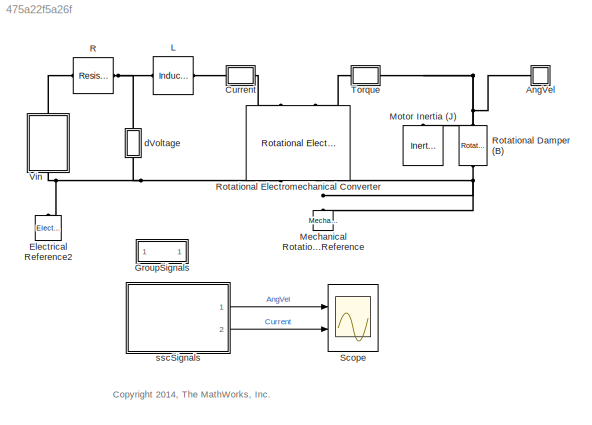
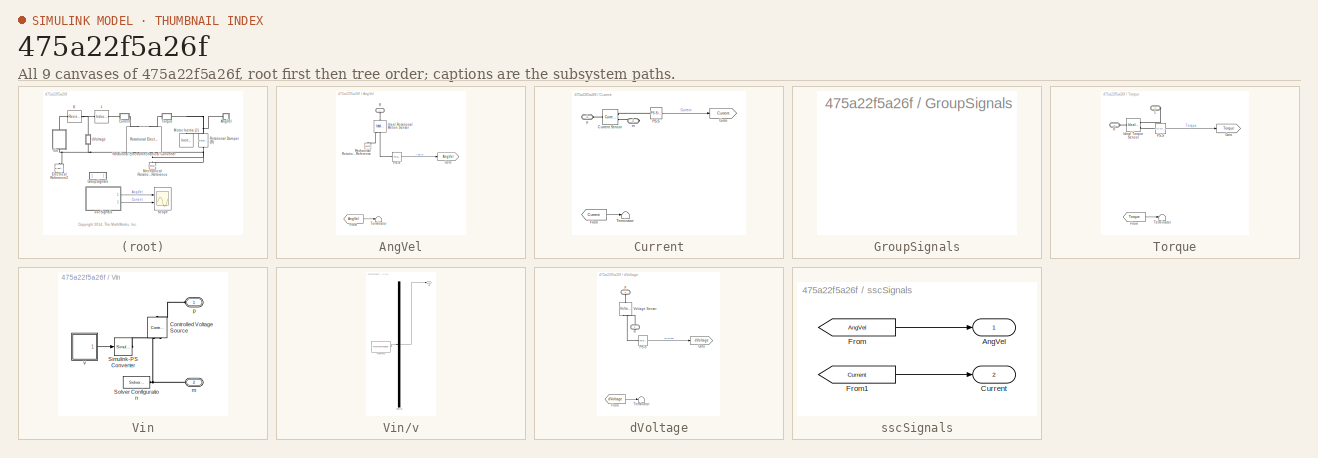
[diagram: thumbnail index - all 9 canvases of the model, root first then tree order]
MODEL slx_475a22f5a26f
KIND model
CONFIG AbsTol = auto
CONFIG EnableMultiTasking = on
CONFIG FixedStep = auto
CONFIG MaxStep = auto
CONFIG MinStep = auto
CONFIG RelTol = 1e-3
CONFIG SampleTimeConstraint = Unconstrained
CONFIG Solver = ode23t
CONFIG SolverName = ode23t
CONFIG StartTime = 0.0
CONFIG StopTime = 10.0
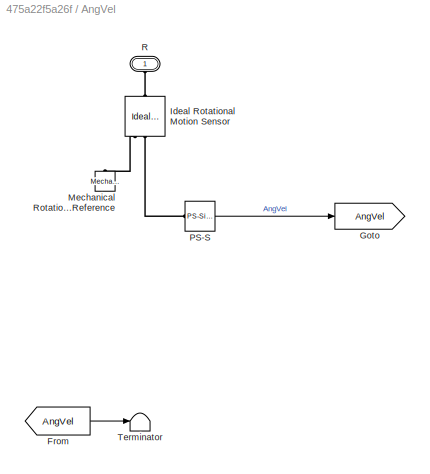
BLOCK [SubSystem] AngVel
  AttributesFormatString = [rpm]
  CopyFcn = set_param(gcb,'LinkStatus','inactive');                \nset_param(gcb,'LinkStatus','none');                    \nset_param([gcb '/Goto'],'GotoTag', [get(gcbh,'name')]);\nset_param([gcb '/From'],'GotoTag', [get(gcbh,'name')]);\nh = get_param([gcb, '/PS-S'], 'PortHandles');\nset(h.Outport(1), 'SignalNameFromLabel', [get(gcbh,'name')])\nclear h;  <repeated x4 — deduplicated; at blocks: AngVel, Current, Torque, dVoltage>
  Description = Simscape Probe
  InitFcn = unit=get_param([gcb '/PS-S'],'Unit');                                              \nset_param(gcb, 'AttributesFormatString', strcat('[', unit,']'));
  NameChangeFcn = set_param([gcb '/Goto'],'GotoTag', [get(gcbh,'name')]);\nset_param([gcb '/From'],'GotoTag', [get(gcbh,'name')]);\nh = get_param([gcb, '/PS-S'], 'PortHandles');\nset(h.Outport(1), 'SignalNameFromLabel', [get(gcbh,'name')])\nclear h;  <repeated x4 — deduplicated; at blocks: AngVel, Current, Torque, dVoltage>
  OpenFcn = if exist('logsout', 'var')\n  vname = get(gcbh,'name');                 \n  fHandle = findall(0,'Tag',vname);                         \n  if isempty(fHandle)                                        \n  figure('Tag',vname);                                       \n  end;                                                       \n  figure(findobj('Tag',vname));                             \n  plot(logsout.getEl...<+220ch>
  Ports = [0, 0, 0, 0, 0, 1]
  RequestExecContextInheritance = off
BLOCK [From] AngVel/From
  GotoTag = AngVel
  TagVisibility = global
BLOCK [Goto] AngVel/Goto
  GotoTag = AngVel
  TagVisibility = global
BLOCK [Reference] AngVel/Ideal Rotational Motion Sensor  REF=fl_lib/Mechanical/Mechanical Sensors/Ideal Rotational
Motion Sensor
  Ports = [0, 0, 0, 0, 0, 1, 3]
  SourceBlock = fl_lib/Mechanical/Mechanical Sensors/Ideal Rotational\nMotion Sensor
  SourceProductBaseCode = SS
  SourceProductName = Simscape
  SourceType = Ideal Rotational\nMotion Sensor
BLOCK [Reference] AngVel/Mechanical Rotational Reference  REF=fl_lib/Mechanical/Rotational Elements/Mechanical
Rotational Reference
  Ports = [0, 0, 0, 0, 0, 1]
  SourceBlock = fl_lib/Mechanical/Rotational Elements/Mechanical\nRotational Reference
  SourceProductBaseCode = SS
  SourceProductName = Simscape
  SourceType = Mechanical\nRotational Reference
BLOCK [Reference] AngVel/PS-S  REF=nesl_utility/PS-Simulink
Converter
  Ports = [0, 1, 0, 0, 0, 1]
  SourceBlock = nesl_utility/PS-Simulink\nConverter
  SourceProductBaseCode = SS
  SourceProductName = Simscape
  SourceType = PS-Simulink\nConverter
BLOCK [PMIOPort] AngVel/R
  Side = Left
BLOCK [Terminator] AngVel/Terminator
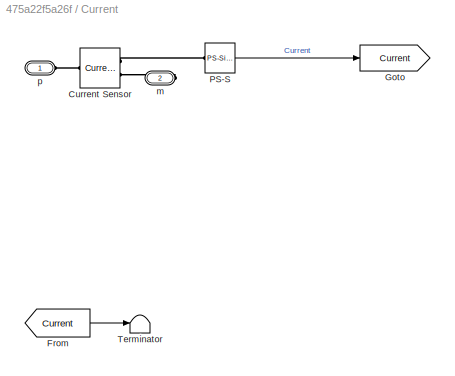
BLOCK [SubSystem] Current
  AttributesFormatString = [A]
  Description = Simscape Probe
  InitFcn = unit=get_param([gcb '/PS-S'],'Unit');                                              \nset_param(gcb, 'AttributesFormatString', strcat('[', unit,']'));
  OpenFcn = if exist('logsout', 'var')\n  vname = get(gcbh,'name');                 \n  fHandle = findall(0,'Tag',vname);                         \n  if isempty(fHandle)                                        \n  figure('Tag',vname);                                       \n  end;                                                       \n  figure(findobj('Tag',vname));                             \n  plot(logsout.getEl...<+211ch>
  Ports = [0, 0, 0, 0, 0, 1, 1]
  RequestExecContextInheritance = off
BLOCK [Reference] Current/Current Sensor  REF=fl_lib/Electrical/Electrical Sensors/Current Sensor
  Ports = [0, 0, 0, 0, 0, 1, 2]
  SourceBlock = fl_lib/Electrical/Electrical Sensors/Current Sensor
  SourceProductBaseCode = SS
  SourceProductName = Simscape
  SourceType = Current Sensor
BLOCK [From] Current/From
  GotoTag = Current
  TagVisibility = global
BLOCK [Goto] Current/Goto
  GotoTag = Current
  TagVisibility = global
BLOCK [Reference] Current/PS-S  REF=nesl_utility/PS-Simulink
Converter
  Ports = [0, 1, 0, 0, 0, 1]
  SourceBlock = nesl_utility/PS-Simulink\nConverter
  SourceProductBaseCode = SS
  SourceProductName = Simscape
  SourceType = PS-Simulink\nConverter
BLOCK [Terminator] Current/Terminator
BLOCK [PMIOPort] Current/m
  Port = 2
  Side = Right
BLOCK [PMIOPort] Current/p
  Side = Left
BLOCK [Reference] Electrical Reference2  REF=fl_lib/Electrical/Electrical Elements/Electrical Reference
  Ports = [0, 0, 0, 0, 0, 1]
  SourceBlock = fl_lib/Electrical/Electrical Elements/Electrical Reference
  SourceProductBaseCode = SS
  SourceProductName = Simscape
  SourceType = Electrical Reference
BLOCK [SubSystem] GroupSignals
  CopyFcn = set_param(gcb,'LinkStatus','inactive')\nset_param(gcb,'LinkStatus','none')
  OpenFcn = GroupSignals
  Ports = []
  RequestExecContextInheritance = off
BLOCK [Reference] L  REF=fl_lib/Electrical/Electrical Elements/Inductor
  Ports = [0, 0, 0, 0, 0, 1, 1]
  SourceBlock = fl_lib/Electrical/Electrical Elements/Inductor
  SourceProductBaseCode = SS
  SourceProductName = Simscape
  SourceType = Inductor
BLOCK [Reference] Mechanical Rotational Reference  REF=fl_lib/Mechanical/Rotational Elements/Mechanical
Rotational Reference
  Ports = [0, 0, 0, 0, 0, 1]
  SourceBlock = fl_lib/Mechanical/Rotational Elements/Mechanical\nRotational Reference
  SourceProductBaseCode = SS
  SourceProductName = Simscape
  SourceType = Mechanical\nRotational Reference
BLOCK [Reference] Motor Inertia (J)  REF=fl_lib/Mechanical/Rotational Elements/Inertia
  Ports = [0, 0, 0, 0, 0, 1]
  SourceBlock = fl_lib/Mechanical/Rotational Elements/Inertia
  SourceProductBaseCode = SS
  SourceProductName = Simscape
  SourceType = Inertia
BLOCK [Reference] R  REF=fl_lib/Electrical/Electrical Elements/Resistor
  Ports = [0, 0, 0, 0, 0, 1, 1]
  SourceBlock = fl_lib/Electrical/Electrical Elements/Resistor
  SourceProductBaseCode = SS
  SourceProductName = Simscape
  SourceType = Resistor
  Tag = Factory Generic
BLOCK [Reference] Rotational Damper (B)  REF=fl_lib/Mechanical/Rotational Elements/Rotational Damper
  Ports = [0, 0, 0, 0, 0, 1, 1]
  SourceBlock = fl_lib/Mechanical/Rotational Elements/Rotational Damper
  SourceProductBaseCode = SS
  SourceProductName = Simscape
  SourceType = Rotational Damper
BLOCK [Reference] Rotational Electromechanical Converter  REF=fl_lib/Electrical/Electrical Elements/Rotational
Electromechanical
Converter
  Ports = [0, 0, 0, 0, 0, 2, 2]
  SourceBlock = fl_lib/Electrical/Electrical Elements/Rotational\nElectromechanical\nConverter
  SourceProductBaseCode = SS
  SourceProductName = Simscape
  SourceType = Rotational\nElectromechanical\nConverter
BLOCK [Scope] Scope
  Floating = off
  NumInputPorts = 2
  Ports = [2]
  ScopeSpecificationString = C++SS(StrPVP('Location','[861, 370, 1183, 599]'),StrPVP('Open','off'),MxPVP('AxesTitles',54,'struct(''axes1'',''%<SignalLabel>'',''axes2'',''%<SignalLabel>'')'),MxPVP('ScopeGraphics',57,'struct(''FigureColor'',''[0.831372549019608 0.815686274509804 0.784313725490196]'',''AxesColor'',''[1 1 1]'',''AxesTickColor'',''[0 0 0]'',''LineColors'',''[0 0 1;1 0 1;0 1 1;1 0 0;0 1 0;0 0 1]'',''LineStyles'',''...<+365ch>
BLOCK [SubSystem] Torque
  AttributesFormatString = [N*m]
  Description = Simscape Probe
  InitFcn = unit=get_param([gcb '/PS-S'],'Unit');                                              \nset_param(gcb, 'AttributesFormatString', strcat('[', unit,']'));
  OpenFcn = if exist('logsout', 'var')\n  vname = get(gcbh,'name');                 \n  fHandle = findall(0,'Tag',vname);                         \n  if isempty(fHandle)                                        \n  figure('Tag',vname);                                       \n  end;                                                       \n  figure(findobj('Tag',vname));                             \n  plot(logsout.getEl...<+210ch>
  Ports = [0, 0, 0, 0, 0, 1, 1]
  RequestExecContextInheritance = off
BLOCK [PMIOPort] Torque/C
  Port = 2
  Side = Right
BLOCK [From] Torque/From
  GotoTag = Torque
  TagVisibility = global
BLOCK [Goto] Torque/Goto
  GotoTag = Torque
  TagVisibility = global
BLOCK [Reference] Torque/Ideal Torque Sensor  REF=fl_lib/Mechanical/Mechanical Sensors/Ideal Torque Sensor
  Ports = [0, 0, 0, 0, 0, 1, 2]
  SourceBlock = fl_lib/Mechanical/Mechanical Sensors/Ideal Torque Sensor
  SourceProductBaseCode = SS
  SourceProductName = Simscape
  SourceType = Ideal Torque Sensor
BLOCK [Reference] Torque/PS-S  REF=nesl_utility/PS-Simulink
Converter
  Ports = [0, 1, 0, 0, 0, 1]
  SourceBlock = nesl_utility/PS-Simulink\nConverter
  SourceProductBaseCode = SS
  SourceProductName = Simscape
  SourceType = PS-Simulink\nConverter
BLOCK [PMIOPort] Torque/R
  Side = Left
BLOCK [Terminator] Torque/Terminator
BLOCK [SubSystem] Vin
  Ports = [0, 0, 0, 0, 0, 1, 1]
  RequestExecContextInheritance = off
BLOCK [Reference] Vin/Controlled Voltage Source  REF=fl_lib/Electrical/Electrical Sources/Controlled Voltage
Source
  Ports = [0, 0, 0, 0, 0, 1, 2]
  SourceBlock = fl_lib/Electrical/Electrical Sources/Controlled Voltage\nSource
  SourceProductBaseCode = SS
  SourceProductName = Simscape
  SourceType = Controlled Voltage\nSource
BLOCK [Reference] Vin/Simulink-PS Converter  REF=nesl_utility/Simulink-PS
Converter
  Ports = [1, 0, 0, 0, 0, 0, 1]
  SourceBlock = nesl_utility/Simulink-PS\nConverter
  SourceProductBaseCode = SS
  SourceProductName = Simscape
  SourceType = Simulink-PS\nConverter
BLOCK [Reference] Vin/Solver Configuration  REF=nesl_utility/Solver
Configuration
  Ports = [0, 0, 0, 0, 0, 0, 1]
  SourceBlock = nesl_utility/Solver\nConfiguration
  SourceProductBaseCode = SS
  SourceProductName = Simscape
  SourceType = Solver\nConfiguration
BLOCK [PMIOPort] Vin/m
  Port = 2
  Side = Right
BLOCK [PMIOPort] Vin/p
  Side = Left
BLOCK [SubSystem] Vin/v
  ClipboardFcn = sigbuilder_block('clipboard');
  CloseFcn = sigbuilder_block('close');
  ContinueFcn = sigbuilder_block('continue')
  CopyFcn = sigbuilder_block('copy');
  DeleteFcn = sigbuilder_block('delete');
  LoadFcn = sigbuilder_block('load');
  MaskHideContents = on
  ModelCloseFcn = sigbuilder_block('modelClose');
  NameChangeFcn = sigbuilder_block('namechange');
  OpenFcn = sigbuilder_block('open',[14.25 95.25 550.5 363.75 ]);
  PauseFcn = sigbuilder_block('pause')
  Ports = [0, 1]
  PreSaveFcn = sigbuilder_block('preSave');
  RequestExecContextInheritance = off
  StartFcn = sigbuilder_block('start');
  StopFcn = sigbuilder_block('stop');
  Tag = STV Subsys
BLOCK [Demux] Vin/v/Demux
  Outputs = 1
  Ports = [1, 1]
  Tag = STV Demux
BLOCK [FromWorkspace] Vin/v/FromWs
  SampleTime = 0
  Tag = STV FromWs
  VariableName = tuvar
  ZeroCross = on
BLOCK [Outport] Vin/v/Vin
  IconDisplay = Port number
  Tag = STV Outport
BLOCK [SubSystem] dVoltage
  AttributesFormatString = [V]
  Description = Simscape Probe
  InitFcn = unit=get_param([gcb '/PS-S'],'Unit');                                              \nset_param(gcb, 'AttributesFormatString', strcat('[', unit,']'));
  OpenFcn = if exist('logsout', 'var')\n  vname = get(gcbh,'name');                 \n  fHandle = findall(0,'Tag',vname);                         \n  if isempty(fHandle)                                        \n  figure('Tag',vname);                                       \n  end;                                                       \n  figure(findobj('Tag',vname));                             \n  plot(logsout.getEl...<+211ch>
  Ports = [0, 0, 0, 0, 0, 1, 1]
  RequestExecContextInheritance = off
BLOCK [From] dVoltage/From
  GotoTag = dVoltage
BLOCK [Goto] dVoltage/Goto
  GotoTag = dVoltage
BLOCK [Reference] dVoltage/PS-S  REF=nesl_utility/PS-Simulink
Converter
  Ports = [0, 1, 0, 0, 0, 1]
  SourceBlock = nesl_utility/PS-Simulink\nConverter
  SourceProductBaseCode = SS
  SourceProductName = Simscape
  SourceType = PS-Simulink\nConverter
BLOCK [Terminator] dVoltage/Terminator
BLOCK [Reference] dVoltage/Voltage Sensor  REF=fl_lib/Electrical/Electrical Sensors/Voltage Sensor
  Ports = [0, 0, 0, 0, 0, 1, 2]
  SourceBlock = fl_lib/Electrical/Electrical Sensors/Voltage Sensor
  SourceProductBaseCode = SS
  SourceProductName = Simscape
  SourceType = Voltage Sensor
BLOCK [PMIOPort] dVoltage/m
  Port = 2
  Side = Right
BLOCK [PMIOPort] dVoltage/p
  Side = Left
BLOCK [SubSystem] sscSignals
  Ports = [0, 2]
  RequestExecContextInheritance = off
BLOCK [Outport] sscSignals/AngVel
  IconDisplay = Port number
BLOCK [Outport] sscSignals/Current
  IconDisplay = Port number
  Port = 2
BLOCK [From] sscSignals/From
  GotoTag = AngVel
  TagVisibility = global
BLOCK [From] sscSignals/From1
  GotoTag = Current
  TagVisibility = global
ANNOTATION (root): <copyright redacted>
LINE Vin/v/Demux:1 -> Vin/v/Vin:1
LINE Vin/v/FromWs:1 -> Vin/v/Demux:1
LINE Vin/v:1 -> Vin/Simulink-PS Converter:1
LINE sscSignals/From1:1 -> sscSignals/Current:1
LINE sscSignals/From:1 -> sscSignals/AngVel:1
LINE sscSignals:1 -> Scope:1
LINE sscSignals:2 -> Scope:2
PNET net1: AngVel:LConn1 -- Motor Inertia (J):LConn1 -- Rotational Damper (B):LConn1 -- Torque:RConn1
PLINE Current:LConn1 -- L:RConn1
PLINE Current:RConn1 -- Rotational Electromechanical Converter:LConn1
PNET net2: Electrical Reference2:LConn1 -- Rotational Electromechanical Converter:RConn1 -- Vin:RConn1 -- dVoltage:RConn1
PNET net3: L:LConn1 -- R:RConn1 -- dVoltage:LConn1
PNET net4: Mechanical Rotational Reference:LConn1 -- Rotational Damper (B):RConn1 -- Rotational Electromechanical Converter:RConn2
PLINE R:LConn1 -- Vin:LConn1
PLINE Rotational Electromechanical Converter:LConn2 -- Torque:LConn1
PLINE Vin/Controlled Voltage Source:LConn1 -- Vin/p:RConn1
PLINE Vin/Controlled Voltage Source:RConn1 -- Vin/Simulink-PS Converter:RConn1
PNET net5: Vin/Controlled Voltage Source:RConn2 -- Vin/Solver Configuration:RConn1 -- Vin/m:RConn1
note: PNET lines group multi-terminal physical nets as a canonical sorted terminal list (undirected conserving connections); 2-terminal nets keep the pairwise PLINE form
